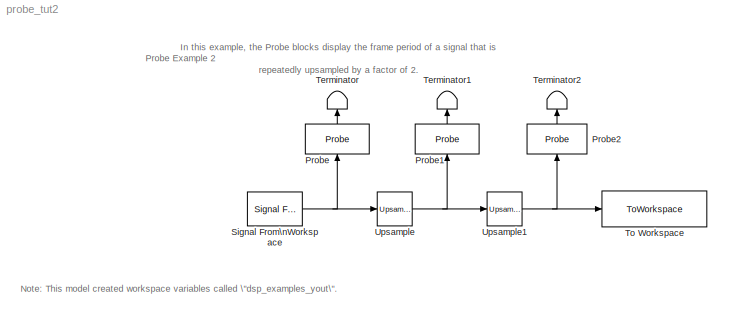
MODEL probe_tut2
KIND model
CONFIG AbsTol = auto
CONFIG FixedStep = auto
CONFIG MaxStep = auto
CONFIG MinStep = auto
CONFIG RelTol = 1e-3
CONFIG Solver = ode45
CONFIG SolverMode = Auto
CONFIG StartTime = 0.0
CONFIG StopTime = 10.0
BLOCK [Probe] Probe
  Ports = [1, 1]
  ProbeComplexSignal = off
  ProbeWidth = off
BLOCK [Probe] Probe1
  Ports = [1, 1]
  ProbeComplexSignal = off
  ProbeWidth = off
BLOCK [Probe] Probe2
  Ports = [1, 1]
  ProbeComplexSignal = off
  ProbeWidth = off
BLOCK [Reference] Signal From\nWorkspace  REF=dspsrcs4/Signal From\nWorkspace
  OutputAfterFinalValue = Setting to zero
  Ports = [0, 1]
  SourceBlock = dspsrcs4/Signal From\nWorkspace
  SourceType = Signal From Workspace
  Ts = 1
  X = 1:1000
  nsamps = 16
BLOCK [Terminator] Terminator
BLOCK [Terminator] Terminator1
BLOCK [Terminator] Terminator2
BLOCK [ToWorkspace] To Workspace
  MaxDataPoints = inf
  SampleTime = -1
  SaveFormat = Array
  VariableName = dsp_examples_yout
BLOCK [Reference] Upsample  REF=dspsigops/Upsample
  N = 2
  Ports = [1, 1]
  SourceBlock = dspsigops/Upsample
  SourceType = Upsample
  ic = 0
  mode = Maintain input frame size
  phase = 0
BLOCK [Reference] Upsample1  REF=dspsigops/Upsample
  N = 2
  Ports = [1, 1]
  SourceBlock = dspsigops/Upsample
  SourceType = Upsample
  ic = 0
  mode = Maintain input frame size
  phase = 0
ANNOTATION (root): In this example, the Probe blocks display the frame period of a signal that is\nrepeatedly upsampled by a factor of 2.
ANNOTATION (root): Note: This model created workspace variables called \"dsp_examples_yout\".
ANNOTATION (root): Probe Example 2
LINE Probe1:1 -> Terminator1:1
LINE Probe2:1 -> Terminator2:1
LINE Probe:1 -> Terminator:1
NET Signal From\nWorkspace:1 -> Probe:1, Upsample:1
NET Upsample1:1 -> Probe2:1, To Workspace:1
NET Upsample:1 -> Probe1:1, Upsample1:1
note: NET lines group one-source signal fan-out (src -> all destinations, sorted); 1:1 wires keep LINE
